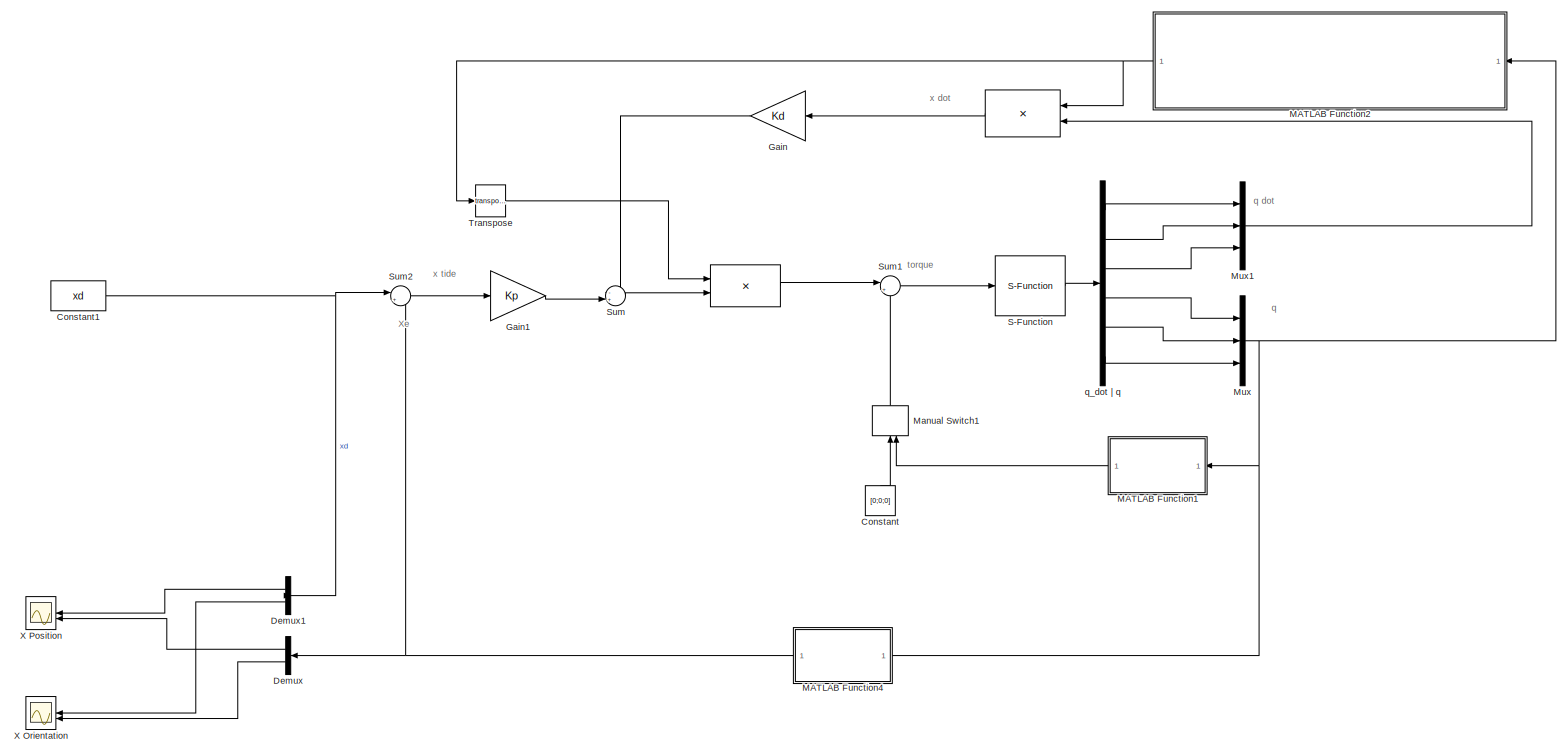
[diagram: root canvas - part 1/1, most of the canvas]
MODEL slx_18ae1bedff08
KIND model
CONFIG AbsTol = auto
CONFIG EnableMultiTasking = off
CONFIG FixedStep = auto
CONFIG MaxStep = auto
CONFIG MinStep = auto
CONFIG RelTol = 1e-3
CONFIG SampleTimeConstraint = Unconstrained
CONFIG SolverName = VariableStepAuto
CONFIG StartTime = 0.0
CONFIG StopTime = 5
BLOCK [Product]  
  Multiplication = Matrix(*)
BLOCK [Product]   
  Multiplication = Matrix(*)
BLOCK [Constant] Constant
  NameLocation = right
  Value = [0;0;0]
BLOCK [Constant] Constant1
  Value = xd
BLOCK [Demux] Demux
  Outputs = 2
BLOCK [Demux] Demux1
  Outputs = 2
BLOCK [Gain] Gain
  Gain = Kd
  Multiplication = Matrix(K*u)
  NameLocation = top
BLOCK [Gain] Gain1
  Gain = Kp
  Multiplication = Matrix(K*u)
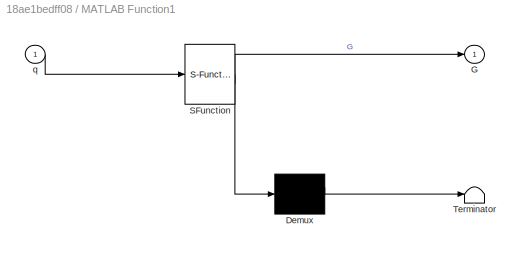
BLOCK [SubSystem] MATLAB Function1
  ErrorFcn = Stateflow.Translate.translate
  LibrarySourceBlock = simulink/User-Defined\nFunctions/MATLAB Function
  NameLocation = top
  PermitHierarchicalResolution = ExplicitOnly
  SFBlockType = MATLAB Function
  TreatAsAtomicUnit = on
BLOCK [Demux] MATLAB Function1/ Demux 
  Outputs = 1
BLOCK [S-Function] MATLAB Function1/ SFunction 
  EnableBusSupport = on
  FunctionName = sf_sfun
  Parameters = params
  PortCounts = [1 2]
  SFcnIsStateOwnerBlock = off
  SFunctionDeploymentMode = off
  Tag = Stateflow S-Function 1
BLOCK [Terminator] MATLAB Function1/ Terminator 
BLOCK [Outport] MATLAB Function1/G
BLOCK [Inport] MATLAB Function1/q
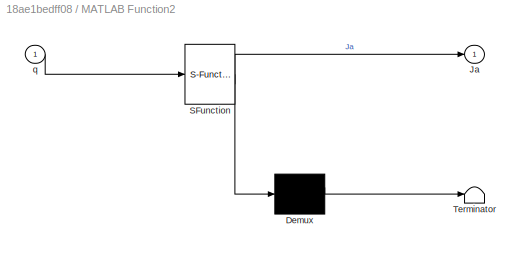
BLOCK [SubSystem] MATLAB Function2
  ErrorFcn = Stateflow.Translate.translate
  LibrarySourceBlock = simulink/User-Defined\nFunctions/MATLAB Function
  NameLocation = top
  PermitHierarchicalResolution = ExplicitOnly
  SFBlockType = MATLAB Function
  TreatAsAtomicUnit = on
BLOCK [Demux] MATLAB Function2/ Demux 
  Outputs = 1
BLOCK [S-Function] MATLAB Function2/ SFunction 
  EnableBusSupport = on
  FunctionName = sf_sfun
  PortCounts = [1 2]
  SFcnIsStateOwnerBlock = off
  SFunctionDeploymentMode = off
  Tag = Stateflow S-Function 3
BLOCK [Terminator] MATLAB Function2/ Terminator 
BLOCK [Outport] MATLAB Function2/Ja
BLOCK [Inport] MATLAB Function2/q
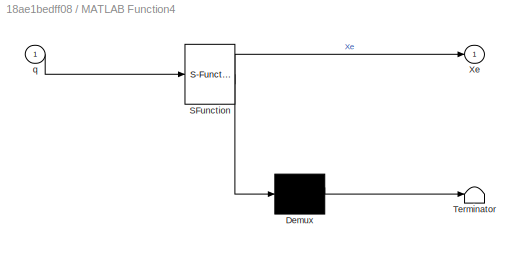
BLOCK [SubSystem] MATLAB Function4
  ErrorFcn = Stateflow.Translate.translate
  LibrarySourceBlock = simulink/User-Defined\nFunctions/MATLAB Function
  NameLocation = top
  PermitHierarchicalResolution = ExplicitOnly
  SFBlockType = MATLAB Function
  TreatAsAtomicUnit = on
BLOCK [Demux] MATLAB Function4/ Demux 
  Outputs = 1
BLOCK [S-Function] MATLAB Function4/ SFunction 
  EnableBusSupport = on
  FunctionName = sf_sfun
  PortCounts = [1 2]
  SFcnIsStateOwnerBlock = off
  SFunctionDeploymentMode = off
  Tag = Stateflow S-Function 5
BLOCK [Terminator] MATLAB Function4/ Terminator 
BLOCK [Outport] MATLAB Function4/Xe
BLOCK [Inport] MATLAB Function4/q
BLOCK [ManualSwitch] Manual Switch1
BLOCK [Mux] Mux
  DisplayOption = bar
  Inputs = 3
BLOCK [Mux] Mux1
  DisplayOption = bar
  Inputs = 3
BLOCK [S-Function] S-Function
  EnableBusSupport = off
  FunctionName = Manipulator
  Parameters = params
  SFcnIsStateOwnerBlock = off
  SFunctionDeploymentMode = off
BLOCK [Sum] Sum
  Inputs = -+|
BLOCK [Sum] Sum1
  Inputs = |++
BLOCK [Sum] Sum2
  Inputs = |+-
BLOCK [Math] Transpose
  Operator = transpose
BLOCK [Scope] X Orientation
  Floating = off
  NumInputPorts = 2
  ScopeSpecificationString = Simulink.scopes.TimeScopeBlockCfg('CurrentConfiguration', extmgr.ConfigurationSet(extmgr.Configuration('Core','General UI',true),extmgr.Configuration('Core','Source UI',true),extmgr.Configuration('Sources','WiredSimulink',true,'DataLoggingVariableName','ScopeData1'),extmgr.Configuration('Visuals','Time Domain',true,'SerializedDisplays',{struct('MinYLimReal','-3.4083','MaxYLimReal','-0.74118','YLab...<+1939ch>
BLOCK [Scope] X Position
  Floating = off
  NumInputPorts = 2
  ScopeSpecificationString = Simulink.scopes.TimeScopeBlockCfg('CurrentConfiguration', extmgr.ConfigurationSet(extmgr.Configuration('Core','General UI',true),extmgr.Configuration('Core','Source UI',true),extmgr.Configuration('Sources','WiredSimulink',true),extmgr.Configuration('Visuals','Time Domain',true,'SerializedDisplays',{struct('MinYLimReal','-0.65303','MaxYLimReal','1.27726','YLabelReal','','MinYLimMag','0.00000','MaxY...<+1941ch>
BLOCK [Demux] q_dot | q
  Outputs = 6
ANNOTATION (root): Xe
ANNOTATION (root): q dot
ANNOTATION (root): q
ANNOTATION (root): x dot
ANNOTATION (root): torque
ANNOTATION (root): x tide
LINE   :1 -> Gain:1
LINE  :1 -> Sum1:1
NET Constant1:1 -> Demux1:1, Sum2:1
LINE Constant:1 -> Manual Switch1:1
LINE Demux1:1 -> X Position:1
LINE Demux1:2 -> X Orientation:1
LINE Demux:1 -> X Position:2
LINE Demux:2 -> X Orientation:2
LINE Gain1:1 -> Sum:2
LINE Gain:1 -> Sum:1
LINE MATLAB Function1:1 -> Manual Switch1:2
NET MATLAB Function2:1 ->   :1, Transpose:1
NET MATLAB Function4:1 -> Demux:1, Sum2:2
LINE Manual Switch1:1 -> Sum1:2
LINE Mux1:1 ->   :2
NET Mux:1 -> MATLAB Function1:1, MATLAB Function2:1, MATLAB Function4:1
LINE S-Function:1 -> q_dot | q:1
LINE Sum1:1 -> S-Function:1
LINE Sum2:1 -> Gain1:1
LINE Sum:1 ->  :2
LINE Transpose:1 ->  :1
LINE q_dot | q:1 -> Mux1:1
LINE q_dot | q:2 -> Mux1:2
LINE q_dot | q:3 -> Mux1:3
LINE q_dot | q:4 -> Mux:1
LINE q_dot | q:5 -> Mux:2
LINE q_dot | q:6 -> Mux:3
note: NET lines group one-source signal fan-out (src -> all destinations, sorted); 1:1 wires keep LINE
CHART MATLAB Function1 states=1 transitions=1
  STATE_LABEL 'eML_blk_kernel()'
  STATE_LABEL 'SCRIPT:\nfunction G = gravityMatrix(q, params)\n    q1 = q(1);\n    q2 = q(2);\n    q3 = q(3);\n    \n    g = params.g;\n\n    m1 = params.m(1);\n    m2 = params.m(2);\n    m3 = params.m(3);\n\n    a1 = 0.02;\n    a2 = 0.03;\n    a3 = 0.01;\n    b1 = 0.1256;\n    b2 = 0.03;\n    b3 = 0.01;\n    c1 = 0.4;\n    c2 = 0.46;\n    c3 = 0.15;\n\n    G = [(c1*g*m1*cos(q1))/2 + g*m2*cos(q1)*(c1 - c2/2) + g*m3*cos(q1)*(c1 + c3/2...<+49ch>'
CHART MATLAB Function2 states=1 transitions=1
  STATE_LABEL 'eML_blk_kernel()'
  STATE_LABEL 'SCRIPT:\nfunction Ja = AnalyticalJacobian(q)\n    q1 = q(1);\n    q2 = q(2);\n    q3 = q(3);\n\n    r1 = 0.4;\n    a1 = 0.02;\n    a2 = 0.03;\n    a3 = 0.01;\n    b1 = 0.1256;\n    b2 = 0.03;\n    b3 = 0.01;\n    c1 = 0.4;\n    c2 = 0.46;\n    c3 = 0.15;\n\n    H = [[0, -sin(q1), cos(q1),              cos(q1)*(c1 + c3 + q3)]\n[1,        0,       0,                           - c2 - q2]\n[0,  cos(q1), sin(q1), r1 + si...<+651ch>'
CHART MATLAB Function4 states=1 transitions=1
  STATE_LABEL 'eML_blk_kernel()'
  STATE_LABEL 'SCRIPT:\nfunction Xe = Kinematics(q)\n    q1 = q(1);\n    q2 = q(2);\n    q3 = q(3);\n\n    r1 = 0.4;\n    a1 = 0.02;\n    a2 = 0.03;\n    a3 = 0.01;\n    b1 = 0.1256;\n    b2 = 0.03;\n    b3 = 0.01;\n    c1 = 0.4;\n    c2 = 0.46;\n    c3 = 0.15;\n    \n    H = [[0, -sin(q1), cos(q1),              cos(q1)*(c1 + c3 + q3)]\n[1,        0,       0,                           - c2 - q2]\n[0,  cos(q1), sin(q1), r1 + sin(q1...<+166ch>'
CHART  states=0 transitions=0
CHART  states=0 transitions=0
CHART  states=0 transitions=0
